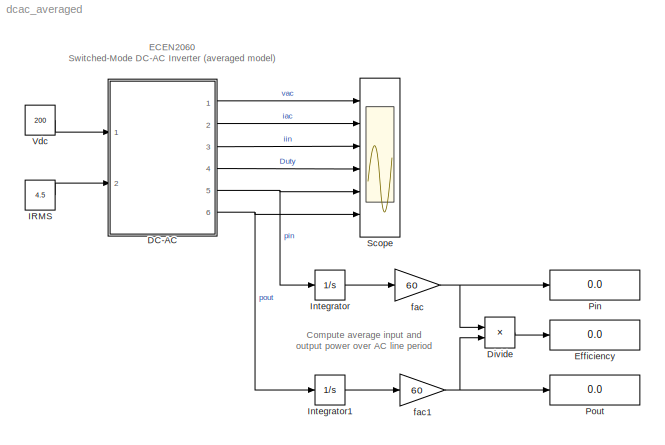
MODEL dcac_averaged
KIND model
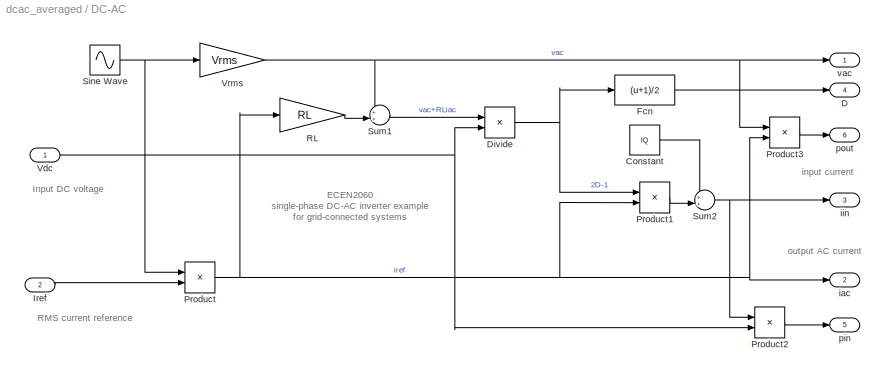
BLOCK [SubSystem] DC-AC
  FunctionWithSeparateData = off
  MaskCallbackString = |||
  MaskDescription = Averaged model of a switched-mode DC-AC inverter for single-phase grid-connected systems. Output ac current is in phase with the output ac line voltage, and has RMS value set by the reference input. Conduction losses are modeled by a series resistor RL at the output. Switching and other losses are modeled by a current source Isw in parallel with the DC input voltage.
  MaskDisplay = text(0.5,0.75,'DC-AC','horizontalAlignment', 'center');\ntext(0.5,0.6,'inverter','horizontalAlignment', 'center');\ntext(0.5,0.45,'(averaged)','horizontalAlignment', 'center');
  MaskEnableString = on,on,on,on
  MaskHideContents = off
  MaskIconFrame = on
  MaskIconOpaque = off
  MaskIconRotate = none
  MaskIconUnits = normalized
  MaskPromptString = AC line RMS voltage|AC line frequency|Output port series resistance|Switching loss current
  MaskStyleString = edit,edit,edit,edit
  MaskTabNameString = ,,,
  MaskToolTipString = on,on,on,on
  MaskTunableValueString = on,on,on,on
  MaskValueString = 120|60|0.8|0.05
  MaskVarAliasString = ,,,
  MaskVariables = Vrms=@1;f=@2;RL=@3;IQ=@4;
  MaskVisibilityString = on,on,on,on
  MinAlgLoopOccurrences = off
  Ports = [2, 6]
  RTWSystemCode = Auto
BLOCK [Constant] DC-AC/Constant
  ConRadixGroup = Use specified scaling
  FramePeriod = inf
  OutDataType = sfix(16)
  OutDataTypeMode = Inherit from 'Constant value'
  OutScaling = 2^0
  SampleTime = inf
  SamplingMode = Sample based
  Value = IQ
  VectorParams1D = on
BLOCK [Outport] DC-AC/D
  BusOutputAsStruct = off
  IconDisplay = Port number
  Port = 4
BLOCK [Product] DC-AC/Divide
  InputSameDT = off
  Inputs = */
  OutDataTypeMode = Inherit via internal rule
  OutScaling = 2^-10
  Ports = [2, 1]
  RndMeth = Floor
  SaturateOnIntegerOverflow = off
BLOCK [Fcn] DC-AC/Fcn
  Expr = (u+1)/2
BLOCK [Inport] DC-AC/Iref
  IconDisplay = Port number
  Port = 2
BLOCK [Product] DC-AC/Product
  InputSameDT = off
  OutDataTypeMode = Inherit via internal rule
  Ports = [2, 1]
  SaturateOnIntegerOverflow = off
BLOCK [Product] DC-AC/Product1
  InputSameDT = off
  OutDataTypeMode = Inherit via internal rule
  Ports = [2, 1]
  SaturateOnIntegerOverflow = off
BLOCK [Product] DC-AC/Product2
  InputSameDT = off
  OutDataTypeMode = Inherit via internal rule
  Ports = [2, 1]
  SaturateOnIntegerOverflow = off
BLOCK [Product] DC-AC/Product3
  InputSameDT = off
  OutDataTypeMode = Inherit via internal rule
  Ports = [2, 1]
  SaturateOnIntegerOverflow = off
BLOCK [Gain] DC-AC/RL
  Gain = RL
  OutDataTypeMode = Inherit via internal rule
  ParameterDataTypeMode = Inherit via internal rule
  SaturateOnIntegerOverflow = off
BLOCK [Sin] DC-AC/Sine Wave
  Amplitude = 1*sqrt(2)
  Frequency = 2*pi*f
  Ports = [0, 1]
  SampleTime = 0
  SineType = Time based
BLOCK [Sum] DC-AC/Sum1
  IconShape = round
  InputSameDT = off
  Inputs = ++|
  OutDataTypeMode = Inherit via internal rule
  Ports = [2, 1]
  SaturateOnIntegerOverflow = off
BLOCK [Sum] DC-AC/Sum2
  IconShape = round
  InputSameDT = off
  Inputs = ++|
  OutDataTypeMode = Inherit via internal rule
  Ports = [2, 1]
  SaturateOnIntegerOverflow = off
BLOCK [Inport] DC-AC/Vdc
  IconDisplay = Port number
BLOCK [Gain] DC-AC/Vrms
  Gain = Vrms
  OutDataTypeMode = Inherit via internal rule
  ParameterDataTypeMode = Inherit via internal rule
  SaturateOnIntegerOverflow = off
BLOCK [Outport] DC-AC/iac
  BusOutputAsStruct = off
  IconDisplay = Port number
  Port = 2
BLOCK [Outport] DC-AC/iin
  BusOutputAsStruct = off
  IconDisplay = Port number
  Port = 3
BLOCK [Outport] DC-AC/pin
  BusOutputAsStruct = off
  IconDisplay = Port number
  Port = 5
BLOCK [Outport] DC-AC/pout
  BusOutputAsStruct = off
  IconDisplay = Port number
  Port = 6
BLOCK [Outport] DC-AC/vac
  BusOutputAsStruct = off
  IconDisplay = Port number
BLOCK [Product] Divide
  InputSameDT = off
  Inputs = /*
  OutDataTypeMode = Inherit via internal rule
  OutScaling = 2^-10
  Ports = [2, 1]
  RndMeth = Floor
  SaturateOnIntegerOverflow = off
BLOCK [Display] Efficiency
  Decimation = 1
  Lockdown = off
  Ports = [1]
BLOCK [Constant] IRMS
  ConRadixGroup = Use specified scaling
  FramePeriod = inf
  OutDataType = sfix(16)
  OutDataTypeMode = Inherit from 'Constant value'
  OutScaling = 2^0
  SampleTime = inf
  SamplingMode = Sample based
  Value = 4.5
  VectorParams1D = on
BLOCK [Integrator] Integrator
  IgnoreLimit = off
  Ports = [1, 1]
BLOCK [Integrator] Integrator1
  IgnoreLimit = off
  Ports = [1, 1]
BLOCK [Display] Pin
  Decimation = 1
  Lockdown = off
  Ports = [1]
BLOCK [Display] Pout
  Decimation = 1
  Lockdown = off
  Ports = [1]
BLOCK [Scope] Scope
  DataFormat = StructureWithTime
  Floating = off
  LimitDataPoints = off
  NumInputPorts = 6
  Ports = [6]
  SampleTime = 0
  TimeRange = 0.018
  YMax = 200~10~8~1~1500~1500
  YMin = -200~-10~0~0~0~0
  ZoomMode = xonly
BLOCK [Constant] Vdc
  ConRadixGroup = Use specified scaling
  FramePeriod = inf
  OutDataType = sfix(16)
  OutDataTypeMode = Inherit from 'Constant value'
  OutScaling = 2^0
  SampleTime = inf
  SamplingMode = Sample based
  Value = 200
  VectorParams1D = on
BLOCK [Gain] fac
  Gain = 60
  OutDataTypeMode = Inherit via internal rule
  ParameterDataTypeMode = Inherit via internal rule
  SaturateOnIntegerOverflow = off
BLOCK [Gain] fac1
  Gain = 60
  OutDataTypeMode = Inherit via internal rule
  ParameterDataTypeMode = Inherit via internal rule
  SaturateOnIntegerOverflow = off
ANNOTATION (root): Compute average input and \noutput power over AC line period
ANNOTATION (root): ECEN2060\nSwitched-Mode DC-AC Inverter (averaged model)
ANNOTATION DC-AC: ECEN2060\nsingle-phase DC-AC inverter example\nfor grid-connected systems
ANNOTATION DC-AC: Input DC voltage
ANNOTATION DC-AC: RMS current reference
ANNOTATION DC-AC: input current
ANNOTATION DC-AC: output AC current
LINE DC-AC/Constant:1 -> DC-AC/Sum2:1
NET DC-AC/Divide:1 -> DC-AC/Fcn:1, DC-AC/Product1:1
LINE DC-AC/Fcn:1 -> DC-AC/D:1
LINE DC-AC/Iref:1 -> DC-AC/Product:2
LINE DC-AC/Product1:1 -> DC-AC/Sum2:2
LINE DC-AC/Product2:1 -> DC-AC/pin:1
LINE DC-AC/Product3:1 -> DC-AC/pout:1
NET DC-AC/Product:1 -> DC-AC/Product1:2, DC-AC/Product3:2, DC-AC/RL:1, DC-AC/iac:1
LINE DC-AC/RL:1 -> DC-AC/Sum1:2
NET DC-AC/Sine Wave:1 -> DC-AC/Product:1, DC-AC/Vrms:1
LINE DC-AC/Sum1:1 -> DC-AC/Divide:1
NET DC-AC/Sum2:1 -> DC-AC/Product2:1, DC-AC/iin:1
NET DC-AC/Vdc:1 -> DC-AC/Divide:2, DC-AC/Product2:2
NET DC-AC/Vrms:1 -> DC-AC/Product3:1, DC-AC/Sum1:1, DC-AC/vac:1
LINE DC-AC:1 -> Scope:1
LINE DC-AC:2 -> Scope:2
LINE DC-AC:3 -> Scope:3
LINE DC-AC:4 -> Scope:4
NET DC-AC:5 -> Integrator:1, Scope:5
NET DC-AC:6 -> Integrator1:1, Scope:6
LINE Divide:1 -> Efficiency:1
LINE IRMS:1 -> DC-AC:2
LINE Integrator1:1 -> fac1:1
LINE Integrator:1 -> fac:1
LINE Vdc:1 -> DC-AC:1
NET fac1:1 -> Divide:2, Pout:1
NET fac:1 -> Divide:1, Pin:1
note: NET lines group one-source signal fan-out (src -> all destinations, sorted); 1:1 wires keep LINE
